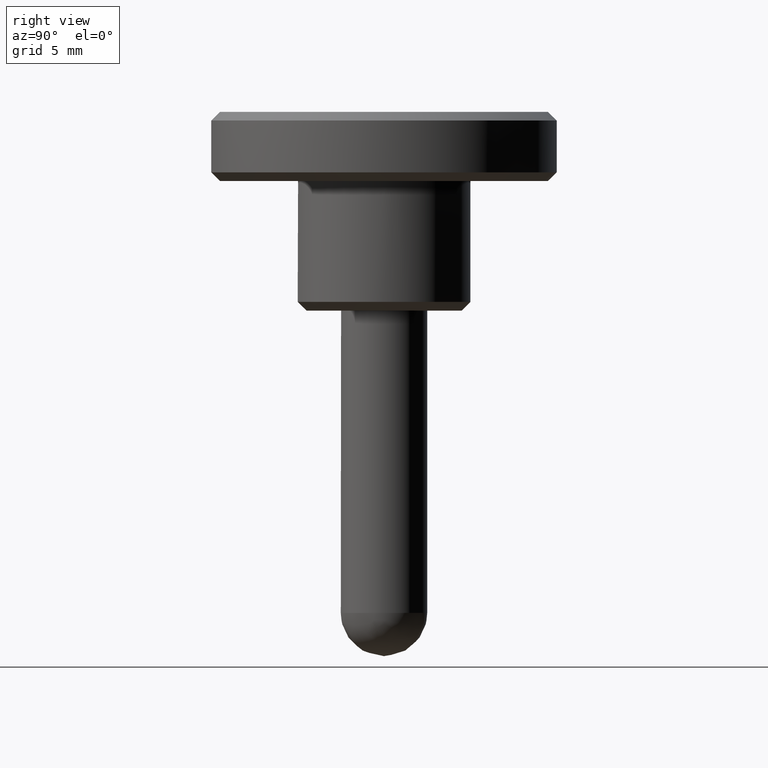
[diagram: clean part render]
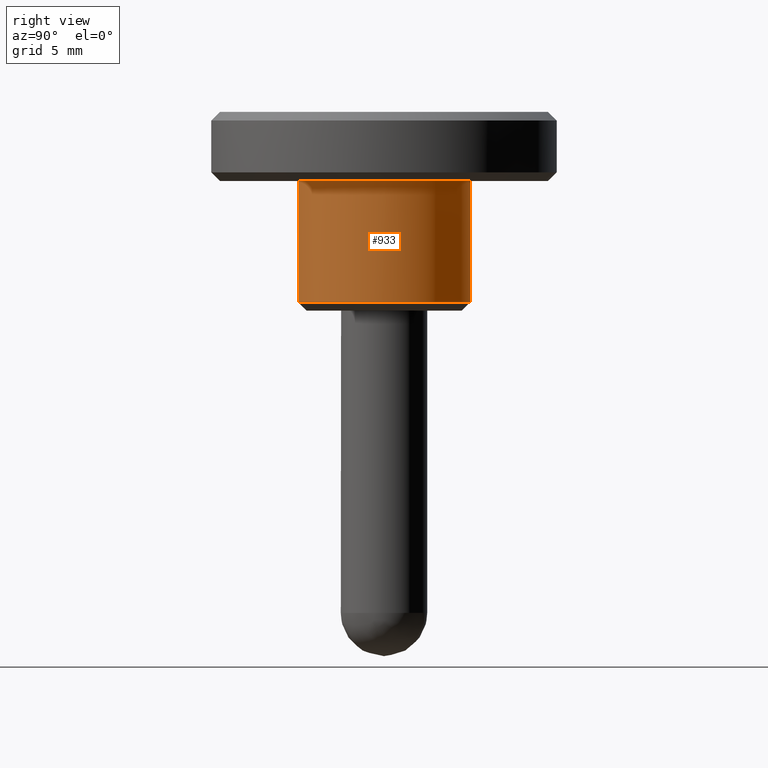
[diagram: same view with one face highlighted and labeled with its STEP entity id]
A machine part, right view. The second image highlights one B-rep face of the part: STEP entity #933.
In plain terms, the highlighted face is a freeform B-spline surface patch.
Its self-contained STEP definition (entity closure, byte-faithful):
#500=CARTESIAN_POINT('',(0.620630775701108,-4.961332224329068,0.499999999999932));
#501=VERTEX_POINT('',#500);
#558=CARTESIAN_POINT('',(-0.043632139682655,4.999809620014071,0.499999999999888));
#559=VERTEX_POINT('',#558);
#565=CARTESIAN_POINT('',(5.0,0.0,0.499999999999945));
#566=VERTEX_POINT('',#565);
#567=CARTESIAN_POINT('',(5.0,0.0,0.499999999999945));
#568=CARTESIAN_POINT('',(5.000000000000001,5.000000000000001,0.499999999999945));
#569=CARTESIAN_POINT('',(0.0,5.0,0.499999999999945));
#570=CARTESIAN_POINT('',(-0.021816485183542,5.0,0.499999999999945));
#571=CARTESIAN_POINT('',(-0.043632139682655,4.999809620014071,0.499999999999888));
#579=(BOUNDED_CURVE()B_SPLINE_CURVE(2,(#567,#568,#569,#570,#571),.UNSPECIFIED.,.F.,.U.)B_SPLINE_CURVE_WITH_KNOTS((3,2,3),(0.500000000000000,0.750000000000000,0.751539875388023),.UNSPECIFIED.)CURVE()GEOMETRIC_REPRESENTATION_ITEM()RATIONAL_B_SPLINE_CURVE((1.0,0.707106781186548,1.0,0.998195923764121,0.996414071948992))REPRESENTATION_ITEM(''));
#580=EDGE_CURVE('',#566,#559,#579,.T.);
#582=CARTESIAN_POINT('',(0.620630775701108,-4.961332224329068,0.499999999999932));
#583=CARTESIAN_POINT('',(4.999999999999999,-4.413501279772150,0.499999999999945));
#584=CARTESIAN_POINT('',(5.0,0.0,0.499999999999945));
#592=(BOUNDED_CURVE()B_SPLINE_CURVE(2,(#582,#583,#584),.UNSPECIFIED.,.F.,.U.)B_SPLINE_CURVE_WITH_KNOTS((3,3),(0.271473615064145,0.500000000000000),.UNSPECIFIED.)CURVE()GEOMETRIC_REPRESENTATION_ITEM()RATIONAL_B_SPLINE_CURVE((0.954006039446907,0.732264686129342,1.0))REPRESENTATION_ITEM(''));
#593=EDGE_CURVE('',#501,#566,#592,.T.);
#863=CARTESIAN_POINT('',(0.550584471427567,-4.970094699256388,0.324999999999944));
#864=CARTESIAN_POINT('',(0.585525983085429,-4.965723674655018,0.324999999999943));
#865=CARTESIAN_POINT('',(5.038664152512223,-4.408656290666105,0.324999999999943));
#866=CARTESIAN_POINT('',(4.999809615320855,0.043632677491869,0.324999999999944));
#867=CARTESIAN_POINT('',(4.956176937828985,5.043442292812725,0.324999999999944));
#868=CARTESIAN_POINT('',(-0.077477372541695,4.999514257141737,0.324999999999943));
#869=CARTESIAN_POINT('',(-0.111132804450990,4.999220550637023,0.324999999999944));
#870=CARTESIAN_POINT('',(0.550584471427567,-4.970094699256388,7.679375000000003));
#871=CARTESIAN_POINT('',(0.585525983085429,-4.965723674655018,7.679375000000003));
#872=CARTESIAN_POINT('',(5.038664152512223,-4.408656290666105,7.679375000000002));
#873=CARTESIAN_POINT('',(4.999809615320855,0.043632677491869,7.679375000000003));
#874=CARTESIAN_POINT('',(4.956176937828985,5.043442292812725,7.679375000000004));
#875=CARTESIAN_POINT('',(-0.077477372541695,4.999514257141737,7.679375000000003));
#876=CARTESIAN_POINT('',(-0.111132804450990,4.999220550637023,7.679375000000006));
#884=(BOUNDED_SURFACE()B_SPLINE_SURFACE(2,1,((#863,#870),(#864,#871),(#865,#872),(#866,#873),(#867,#874),(#868,#875),(#869,#876)),.UNSPECIFIED.,.F.,.F.,.U.)B_SPLINE_SURFACE_WITH_KNOTS((3,1,2,1,3),(2,2),(0.0,0.079539487767927,7.701069035432873,15.985340282894770,16.064869347004720),(0.0,7.354375000000061),.UNSPECIFIED.)GEOMETRIC_REPRESENTATION_ITEM()RATIONAL_B_SPLINE_SURFACE(((0.961610522729175,0.961610522729175),(0.959248320459918,0.959248320459918),(0.730538238691624,0.730538238691624),(1.0,1.0),(0.707106781186548,0.707106781186548),(1.002811777026678,1.002811777026678),(1.005623554053356,1.005623554053356)))REPRESENTATION_ITEM('')SURFACE());
#885=ORIENTED_EDGE('',*,*,#593,.T.);
#886=ORIENTED_EDGE('',*,*,#580,.T.);
#887=CARTESIAN_POINT('',(-0.043632685768200,4.999809615248630,7.500000000000000));
#888=VERTEX_POINT('',#887);
#889=CARTESIAN_POINT('',(-0.043632139682655,4.999809620014071,0.499999999999888));
#890=CARTESIAN_POINT('',(-0.043632685768200,4.999809615248630,7.500000000000000));
#891=QUASI_UNIFORM_CURVE('',1,(#889,#890),.UNSPECIFIED.,.F.,.U.);
#892=EDGE_CURVE('',#559,#888,#891,.T.);
#893=ORIENTED_EDGE('',*,*,#892,.T.);
#894=CARTESIAN_POINT('',(5.0,0.0,7.500000000000000));
#895=VERTEX_POINT('',#894);
#896=CARTESIAN_POINT('',(-0.043632685768200,4.999809615248630,7.500000000000001));
#897=CARTESIAN_POINT('',(-0.021816762380311,4.999999999999999,7.500000000000000));
#898=CARTESIAN_POINT('',(0.0,5.0,7.500000000000000));
#899=CARTESIAN_POINT('',(5.000000000000001,5.000000000000001,7.500000000000000));
#900=CARTESIAN_POINT('',(5.0,0.0,7.500000000000000));
#908=(BOUNDED_CURVE()B_SPLINE_CURVE(2,(#896,#897,#898,#899,#900),.UNSPECIFIED.,.F.,.U.)B_SPLINE_CURVE_WITH_KNOTS((3,2,3),(0.248460105081864,0.250000000000000,0.500000000000000),.UNSPECIFIED.)CURVE()GEOMETRIC_REPRESENTATION_ITEM()RATIONAL_B_SPLINE_CURVE((0.996414026750837,0.998195900883171,1.0,0.707106781186548,1.0))REPRESENTATION_ITEM(''));
#909=EDGE_CURVE('',#888,#895,#908,.T.);
#910=ORIENTED_EDGE('',*,*,#909,.T.);
#911=CARTESIAN_POINT('',(0.620634893490197,-4.961331709224432,7.500000000000000));
#912=VERTEX_POINT('',#911);
#913=CARTESIAN_POINT('',(5.0,0.0,7.500000000000000));
#914=CARTESIAN_POINT('',(5.0,-4.413497588122099,7.499999999999999));
#915=CARTESIAN_POINT('',(0.620634893490197,-4.961331709224433,7.500000000000001));
#923=(BOUNDED_CURVE()B_SPLINE_CURVE(2,(#913,#914,#915),.UNSPECIFIED.,.F.,.U.)B_SPLINE_CURVE_WITH_KNOTS((3,3),(0.500000000000000,0.728526244963649),.UNSPECIFIED.)CURVE()GEOMETRIC_REPRESENTATION_ITEM()RATIONAL_B_SPLINE_CURVE((1.0,0.732264850116981,0.954005767814331))REPRESENTATION_ITEM(''));
#924=EDGE_CURVE('',#895,#912,#923,.T.);
#925=ORIENTED_EDGE('',*,*,#924,.T.);
#926=CARTESIAN_POINT('',(0.620630775701108,-4.961332224329068,0.499999999999932));
#927=CARTESIAN_POINT('',(0.620634893490197,-4.961331709224432,7.500000000000000));
#928=QUASI_UNIFORM_CURVE('',1,(#926,#927),.UNSPECIFIED.,.F.,.U.);
#929=EDGE_CURVE('',#501,#912,#928,.T.);
#930=ORIENTED_EDGE('',*,*,#929,.F.);
#931=EDGE_LOOP('',(#885,#886,#893,#910,#925,#930));
#932=FACE_OUTER_BOUND('',#931,.T.);
#933=ADVANCED_FACE('',(#932),#884,.T.);